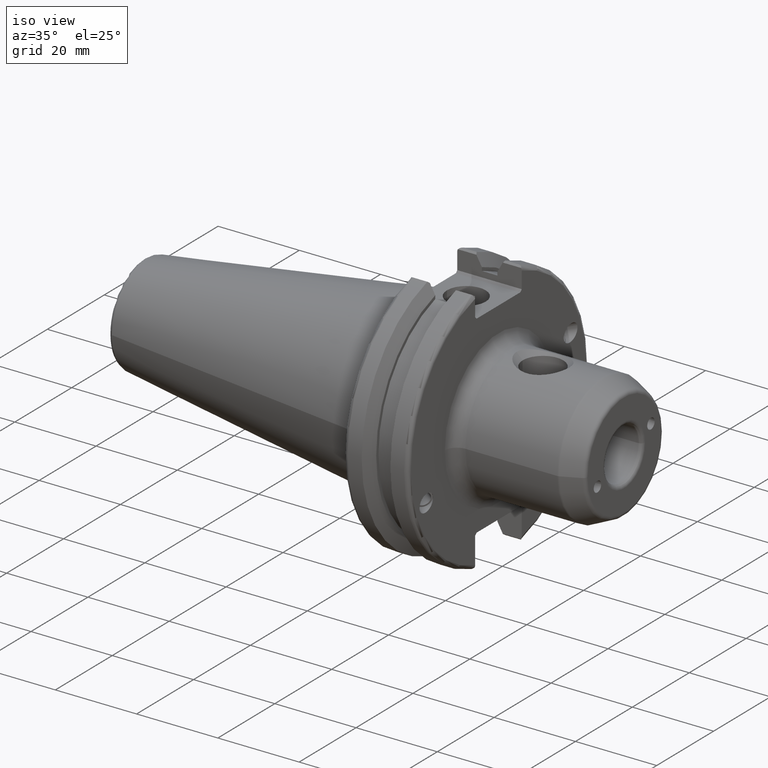
[diagram: clean part render]
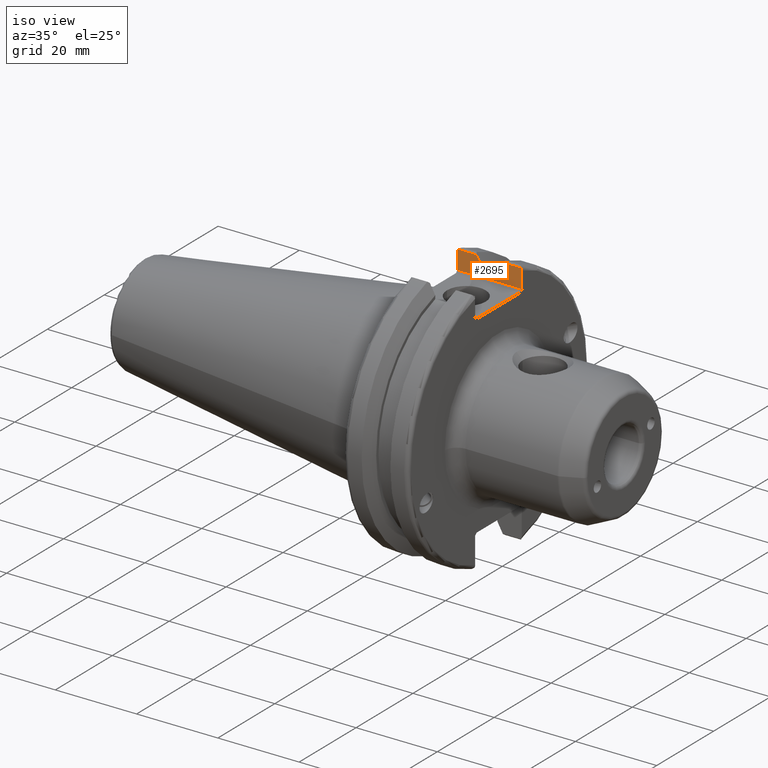
[diagram: same view with one face highlighted and labeled with its STEP entity id]
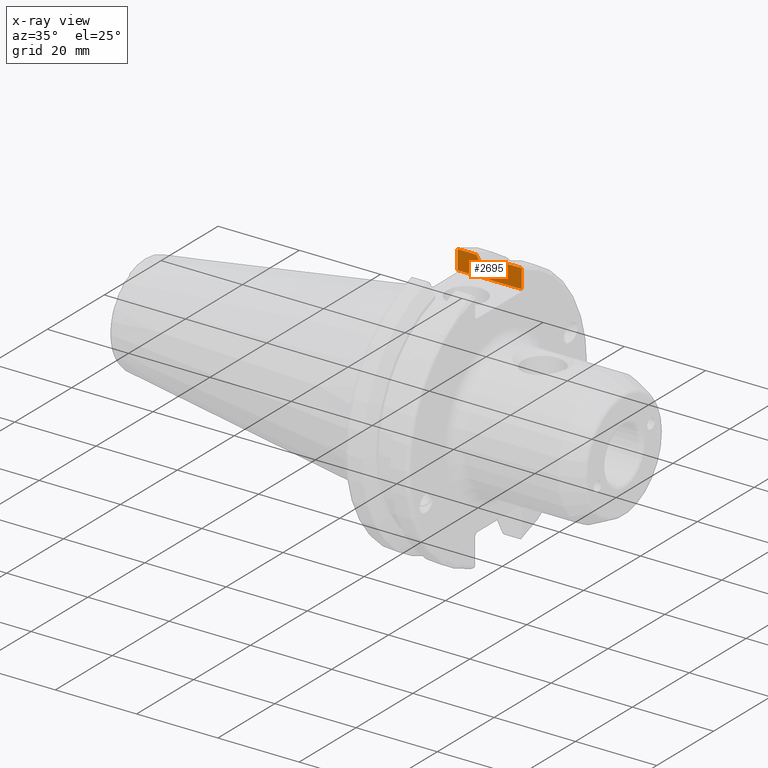
[diagram: x-ray of the same camera — body ghosted, the highlighted face saturated]
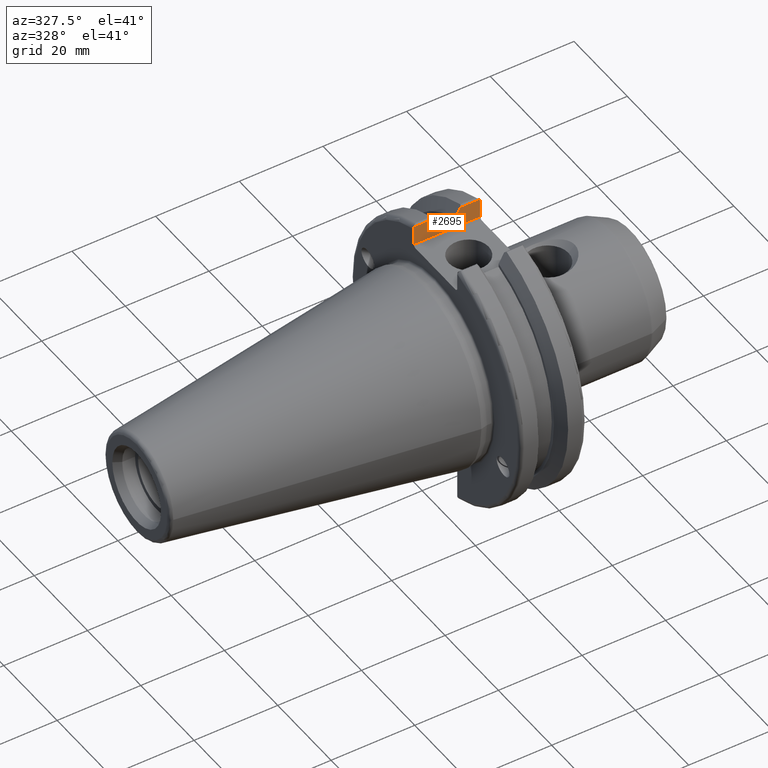
[diagram: same view with one face highlighted and labeled with its STEP entity id]
A machine part, iso view. The second image highlights one B-rep face of the part: STEP entity #2695.
The next image is the same camera in x-ray: the body ghosted, the highlighted face saturated — about 0% of this face is hidden behind the body in this view.
A second angle (auxiliary view) of the same face is appended — the face is thin or edge-on in the first view.
In plain terms, the highlighted planar face has unit normal (0, 1, 0).
Its self-contained STEP definition (entity closure, byte-faithful):
#372=CARTESIAN_POINT('',(1.905E1,8.19E0,2.963927124610E1));
#373=CARTESIAN_POINT('',(1.905E1,8.19E0,2.970021491639E1));
#374=CARTESIAN_POINT('',(1.903851852503E1,8.19E0,2.982130388489E1));
#375=CARTESIAN_POINT('',(1.899008869045E1,8.19E0,3.001000497750E1));
#376=CARTESIAN_POINT('',(1.893730229488E1,8.19E0,3.012160766245E1));
#377=CARTESIAN_POINT('',(1.890587227491E1,8.19E0,3.017550162589E1));
#379=DIRECTION('',(0.E0,0.E0,1.E0));
#380=VECTOR('',#379,4.139271246102E0);
#381=CARTESIAN_POINT('',(1.905E1,8.19E0,2.55E1));
#382=LINE('',#381,#380);
#383=DIRECTION('',(1.E0,0.E0,0.E0));
#384=VECTOR('',#383,1.5875E1);
#385=CARTESIAN_POINT('',(3.175E0,8.19E0,2.55E1));
#386=LINE('',#385,#384);
#387=DIRECTION('',(0.E0,0.E0,-1.E0));
#388=VECTOR('',#387,4.139271246102E0);
#389=CARTESIAN_POINT('',(3.175E0,8.19E0,2.963927124610E1));
#390=LINE('',#389,#388);
#391=CARTESIAN_POINT('',(3.319127725090E0,8.19E0,3.017550162589E1));
#392=CARTESIAN_POINT('',(3.287697548307E0,8.19E0,3.012160739357E1));
#393=CARTESIAN_POINT('',(3.234911048228E0,8.19E0,3.001000429245E1));
#394=CARTESIAN_POINT('',(3.186481360641E0,8.19E0,2.982130314403E1));
#395=CARTESIAN_POINT('',(3.175E0,8.19E0,2.970021459717E1));
#396=CARTESIAN_POINT('',(3.175E0,8.19E0,2.963927124610E1));
#398=DIRECTION('',(-1.E0,0.E0,0.E0));
#399=VECTOR('',#398,4.567557578422E0);
#400=CARTESIAN_POINT('',(7.886685303513E0,8.19E0,3.017550162589E1));
#401=LINE('',#400,#399);
#402=DIRECTION('',(0.E0,0.E0,1.E0));
#403=VECTOR('',#402,8.448829287288E-1);
#404=CARTESIAN_POINT('',(9.2191E0,8.19E0,2.693225575402E1));
#405=LINE('',#404,#403);
#406=DIRECTION('',(0.E0,0.E0,-1.E0));
#407=VECTOR('',#406,8.448829287288E-1);
#408=CARTESIAN_POINT('',(1.30491E1,8.19E0,2.777713868275E1));
#409=LINE('',#408,#407);
#410=DIRECTION('',(-1.E0,0.E0,0.E0));
#411=VECTOR('',#410,4.524357578422E0);
#412=CARTESIAN_POINT('',(1.890587227491E1,8.19E0,3.017550162589E1));
#413=LINE('',#412,#411);
#753=CARTESIAN_POINT('',(1.30491E1,8.19E0,2.777713868275E1));
#754=CARTESIAN_POINT('',(1.319685793565E1,8.19E0,2.804395547231E1));
#755=CARTESIAN_POINT('',(1.349260385303E1,8.19E0,2.857734670457E1));
#756=CARTESIAN_POINT('',(1.393676772715E1,8.19E0,2.937678822525E1));
#757=CARTESIAN_POINT('',(1.423320822959E1,8.19E0,2.990933412171E1));
#758=CARTESIAN_POINT('',(1.438151469649E1,8.19E0,3.017550162589E1));
#791=DIRECTION('',(1.E0,0.E0,0.E0));
#792=VECTOR('',#791,3.83E0);
#793=CARTESIAN_POINT('',(9.2191E0,8.19E0,2.693225575402E1));
#794=LINE('',#793,#792);
#829=CARTESIAN_POINT('',(7.886685303513E0,8.19E0,3.017550162589E1));
#830=CARTESIAN_POINT('',(8.034991770422E0,8.19E0,2.990933412169E1));
#831=CARTESIAN_POINT('',(8.331432272879E0,8.19E0,2.937678822520E1));
#832=CARTESIAN_POINT('',(8.775596147002E0,8.19E0,2.857734670452E1));
#833=CARTESIAN_POINT('',(9.071342064357E0,8.19E0,2.804395547229E1));
#834=CARTESIAN_POINT('',(9.2191E0,8.19E0,2.777713868275E1));
#872=CARTESIAN_POINT('',(3.319127725090E0,8.19E0,3.017550162589E1));
#2024=CARTESIAN_POINT('',(3.175E0,8.19E0,2.55E1));
#2025=VERTEX_POINT('',#2024);
#2026=CARTESIAN_POINT('',(3.175E0,8.19E0,2.963927124610E1));
#2027=VERTEX_POINT('',#2026);
#2038=VERTEX_POINT('',#372);
#2039=VERTEX_POINT('',#377);
#2061=CARTESIAN_POINT('',(1.905E1,8.19E0,2.55E1));
#2062=VERTEX_POINT('',#2061);
#2117=VERTEX_POINT('',#872);
#2126=CARTESIAN_POINT('',(1.438151469649E1,8.19E0,3.017550162589E1));
#2127=VERTEX_POINT('',#2126);
#2128=VERTEX_POINT('',#753);
#2129=CARTESIAN_POINT('',(1.30491E1,8.19E0,2.693225575402E1));
#2130=VERTEX_POINT('',#2129);
#2131=CARTESIAN_POINT('',(9.2191E0,8.19E0,2.693225575402E1));
#2132=VERTEX_POINT('',#2131);
#2133=CARTESIAN_POINT('',(9.2191E0,8.19E0,2.777713868275E1));
#2134=VERTEX_POINT('',#2133);
#2135=VERTEX_POINT('',#829);
#2666=CARTESIAN_POINT('',(2.005E1,8.19E0,2.5E1));
#2667=DIRECTION('',(0.E0,1.E0,0.E0));
#2668=DIRECTION('',(-1.E0,0.E0,0.E0));
#2669=AXIS2_PLACEMENT_3D('',#2666,#2667,#2668);
#2670=PLANE('',#2669);
#2671=ORIENTED_EDGE('',*,*,#2652,.F.);
#2672=ORIENTED_EDGE('',*,*,#2626,.F.);
#2674=ORIENTED_EDGE('',*,*,#2673,.F.);
#2676=ORIENTED_EDGE('',*,*,#2675,.F.);
#2678=ORIENTED_EDGE('',*,*,#2677,.F.);
#2680=ORIENTED_EDGE('',*,*,#2679,.F.);
#2682=ORIENTED_EDGE('',*,*,#2681,.T.);
#2684=ORIENTED_EDGE('',*,*,#2683,.F.);
#2686=ORIENTED_EDGE('',*,*,#2685,.T.);
#2688=ORIENTED_EDGE('',*,*,#2687,.F.);
#2690=ORIENTED_EDGE('',*,*,#2689,.T.);
#2692=ORIENTED_EDGE('',*,*,#2691,.F.);
#2693=EDGE_LOOP('',(#2671,#2672,#2674,#2676,#2678,#2680,#2682,#2684,#2686,#2688,
#2690,#2692));
#2694=FACE_OUTER_BOUND('',#2693,.F.);
#2695=ADVANCED_FACE('',(#2694),#2670,.F.);
#378=B_SPLINE_CURVE_WITH_KNOTS('',3,(#372,#373,#374,#375,#376,#377),
.UNSPECIFIED.,.F.,.F.,(4,1,1,4),(0.E0,3.333333333333E-1,6.666666666667E-1,1.E0),
.UNSPECIFIED.);
#397=B_SPLINE_CURVE_WITH_KNOTS('',3,(#391,#392,#393,#394,#395,#396),
.UNSPECIFIED.,.F.,.F.,(4,1,1,4),(0.E0,3.333333333333E-1,6.666666666667E-1,1.E0),
.UNSPECIFIED.);
#759=B_SPLINE_CURVE_WITH_KNOTS('',3,(#753,#754,#755,#756,#757,#758),
.UNSPECIFIED.,.F.,.F.,(4,1,1,4),(0.E0,3.333333333333E-1,6.666666666667E-1,1.E0),
.UNSPECIFIED.);
#835=B_SPLINE_CURVE_WITH_KNOTS('',3,(#829,#830,#831,#832,#833,#834),
.UNSPECIFIED.,.F.,.F.,(4,1,1,4),(0.E0,3.333333333333E-1,6.666666666667E-1,1.E0),
.UNSPECIFIED.);
#2626=EDGE_CURVE('',#2062,#2038,#382,.T.);
#2652=EDGE_CURVE('',#2038,#2039,#378,.T.);
#2673=EDGE_CURVE('',#2025,#2062,#386,.T.);
#2675=EDGE_CURVE('',#2027,#2025,#390,.T.);
#2677=EDGE_CURVE('',#2117,#2027,#397,.T.);
#2679=EDGE_CURVE('',#2135,#2117,#401,.T.);
#2681=EDGE_CURVE('',#2135,#2134,#835,.T.);
#2683=EDGE_CURVE('',#2132,#2134,#405,.T.);
#2685=EDGE_CURVE('',#2132,#2130,#794,.T.);
#2687=EDGE_CURVE('',#2128,#2130,#409,.T.);
#2689=EDGE_CURVE('',#2128,#2127,#759,.T.);
#2691=EDGE_CURVE('',#2039,#2127,#413,.T.);